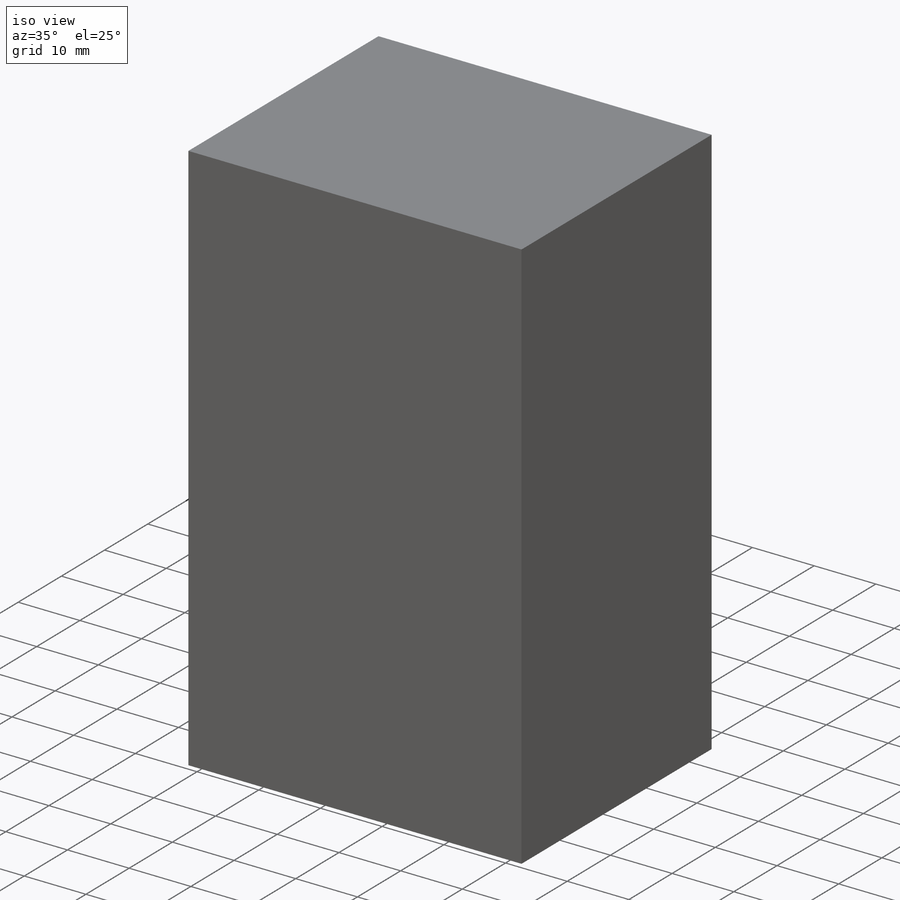
[diagram: iso view]
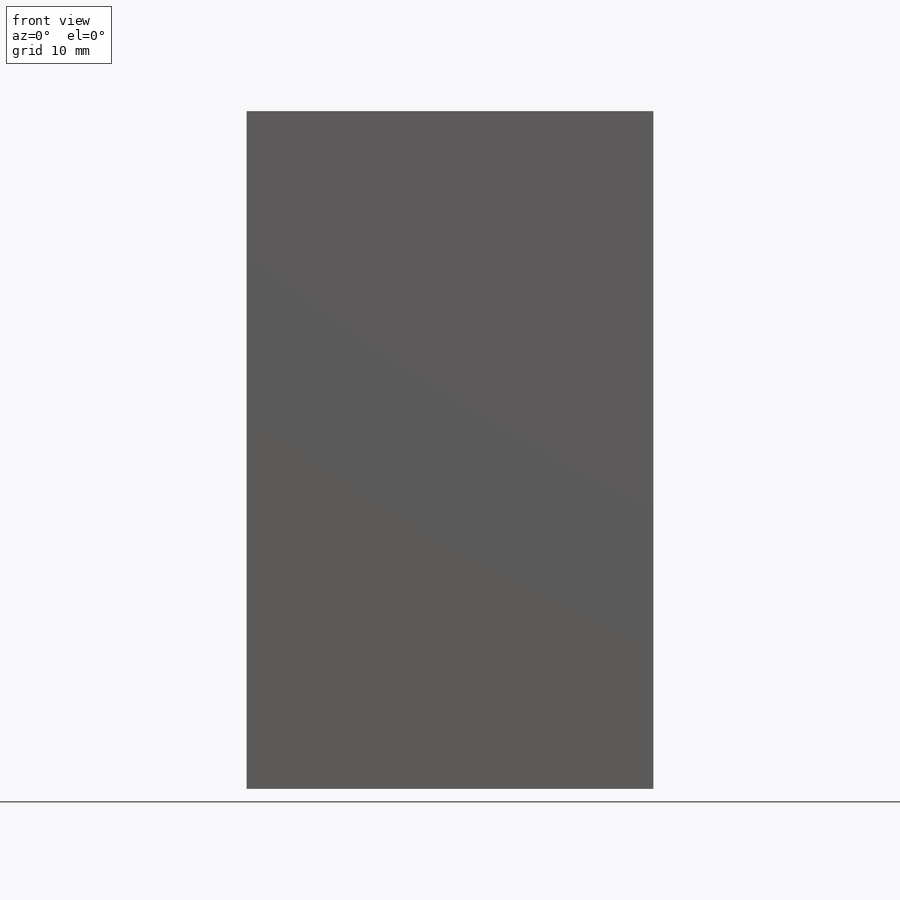
[diagram: front view]
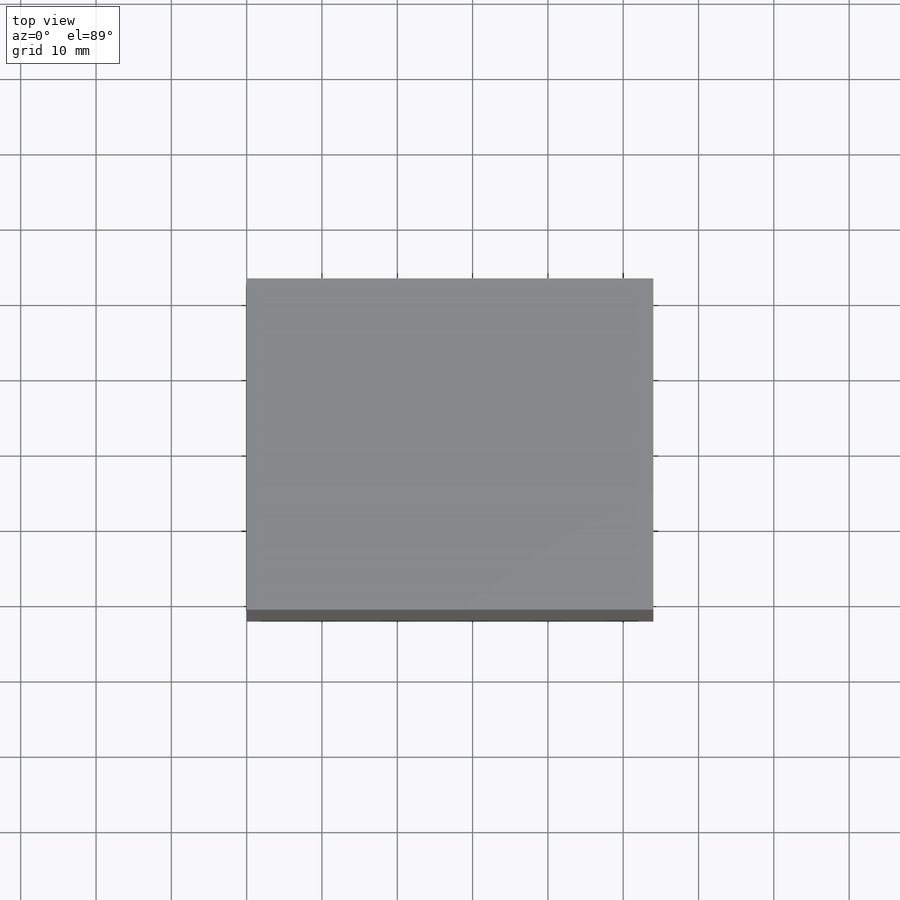
[diagram: top view]
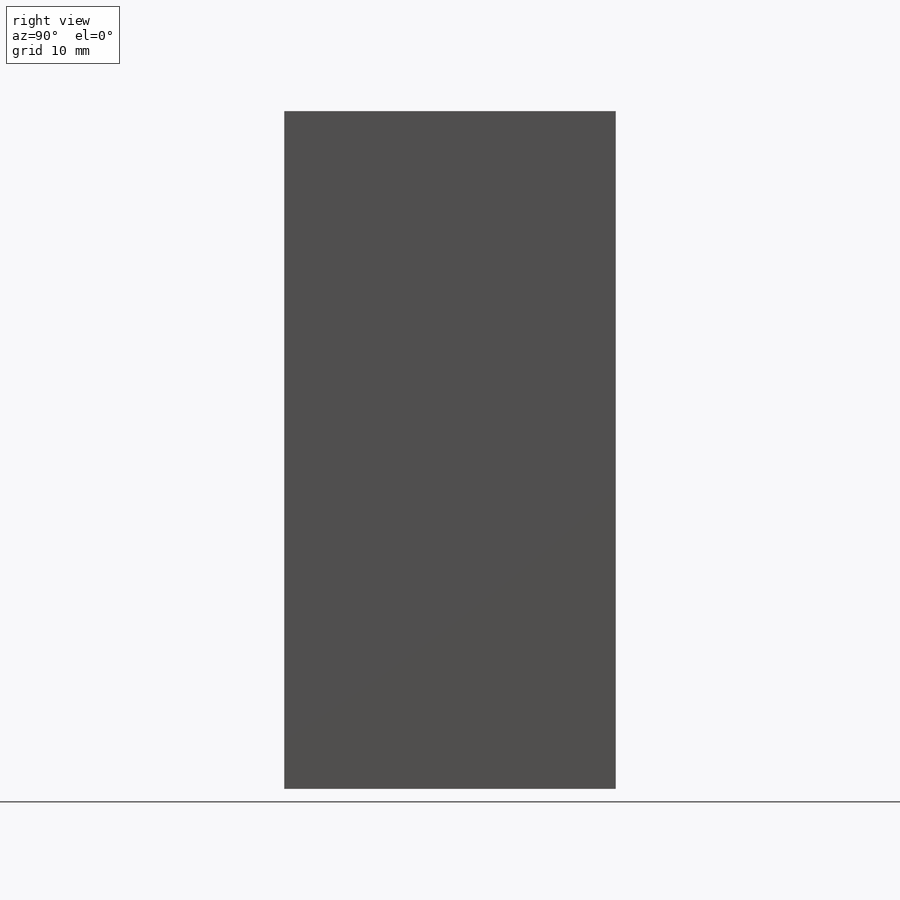
[diagram: right view]
SOLIDWORKS PART (.sldprt)
format: sldprt  version: not decoded by parser v0  size: 500,224 bytes
history: native  units: mm
features: sketch x7, cut_extrude x4, extrude x3, material x1 (+12 scaffold rows collapsed)
feature tree (27):
  scaffold x12  (default folders/planes/origin — collapsed)
  material  "Material <not specified>"
  sketch  "Sketch1"  dims[D1=90.0mm D2=54.0mm D3=8.0mm D4=8.0mm D5=8.0mm D6=8.0mm]
  extrude  "Boss-Extrude1"  Depth=40mm
  sketch  "Sketch2"  dims[D1=19.0mm D2=20.0mm D3=10.2mm D4=19.0mm D5=20.0mm D6=10.2mm]
  cut_extrude  "Cut-Extrude1"  Depth=4.1mm
  sketch  "Sketch5"  dims[D1=8.2mm D3=~4.734272mm D2=2.0]
  cut_extrude  "Cut-Extrude2"  Depth=0.5mm
  sketch  "Sketch6"  dims[D1=19.0mm D2=20.0mm D3=19.0mm D4=20.0mm D5=10.2mm D6=10.2mm]
  cut_extrude  "Cut-Extrude3"  Depth=4.1mm
  sketch  "Sketch7"  dims[c1.D3=8.2mm c1.D1=19.0mm c1.D2=8.2mm c2.D3=20.0mm c2.D1=19.0mm c2.D2=20.0mm c2.D4=2.0]
  cut_extrude  "Cut-Extrude4"  Depth=0.5mm
  sketch  "Sketch8"
  extrude  "Boss-Extrude2"  Depth=2mm
  sketch  "Sketch9"
  extrude  "Boss-Extrude3"  Depth=2mm
decode coverage: 12 of 14 modeling features carry decoded parameters
note: ~ marks probable driven/reference dimensions
note: suppression state not decoded; provenance and decode notes live in map.json
